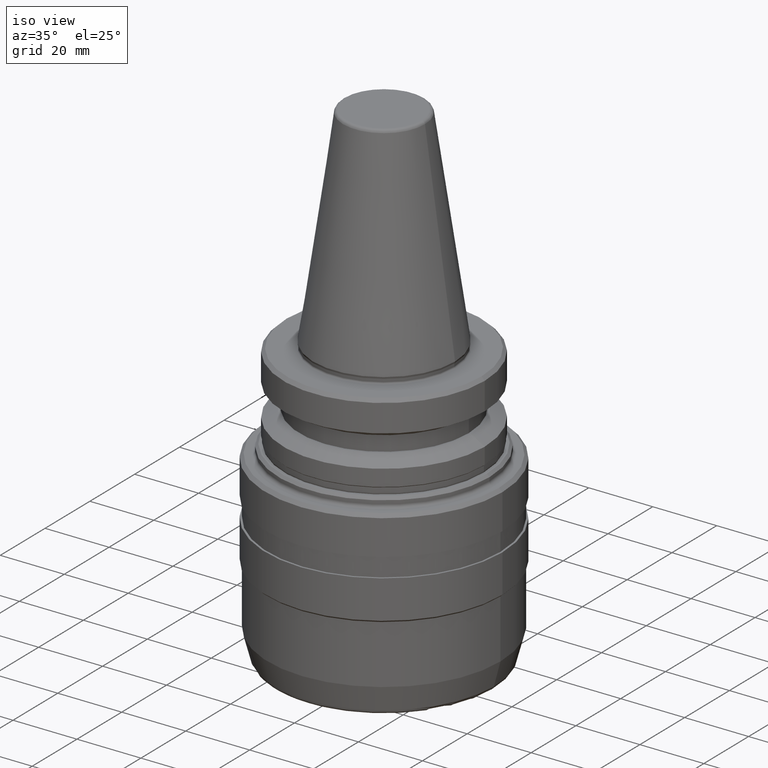
[diagram: clean part render]
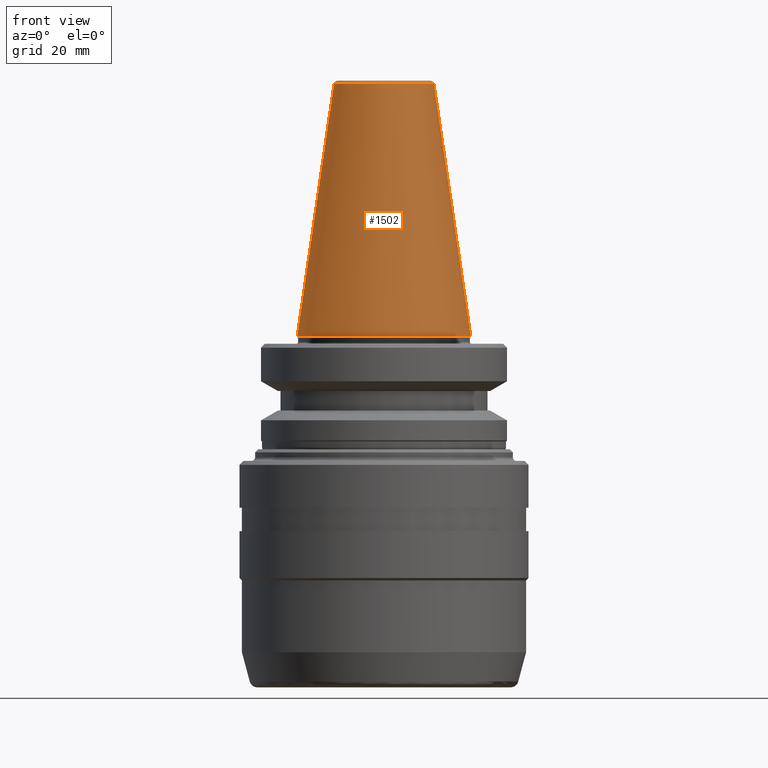
[diagram: tour spotlight — one face highlighted and labeled with its STEP entity id]
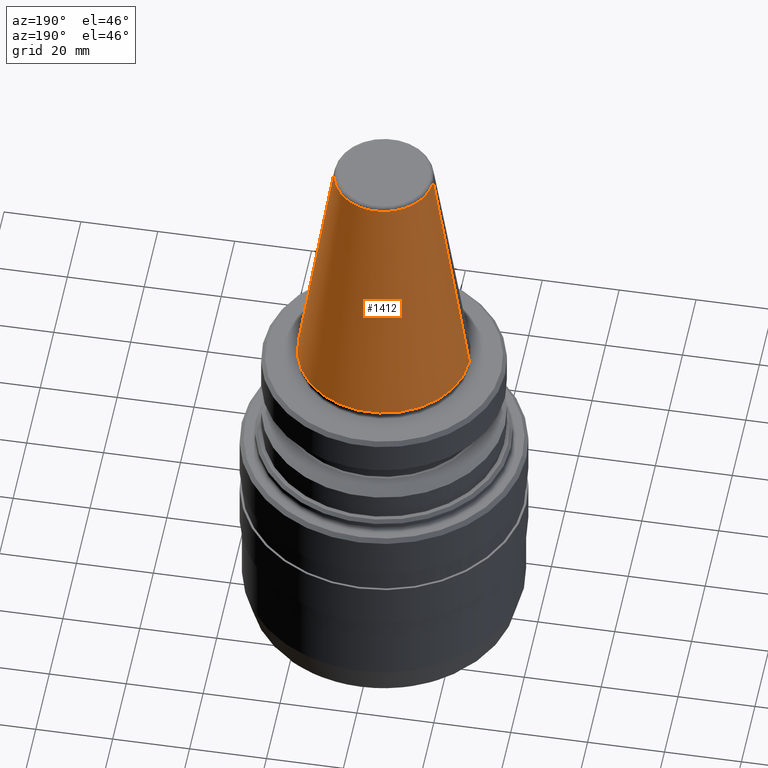
[diagram: tour spotlight — one face highlighted and labeled with its STEP entity id]
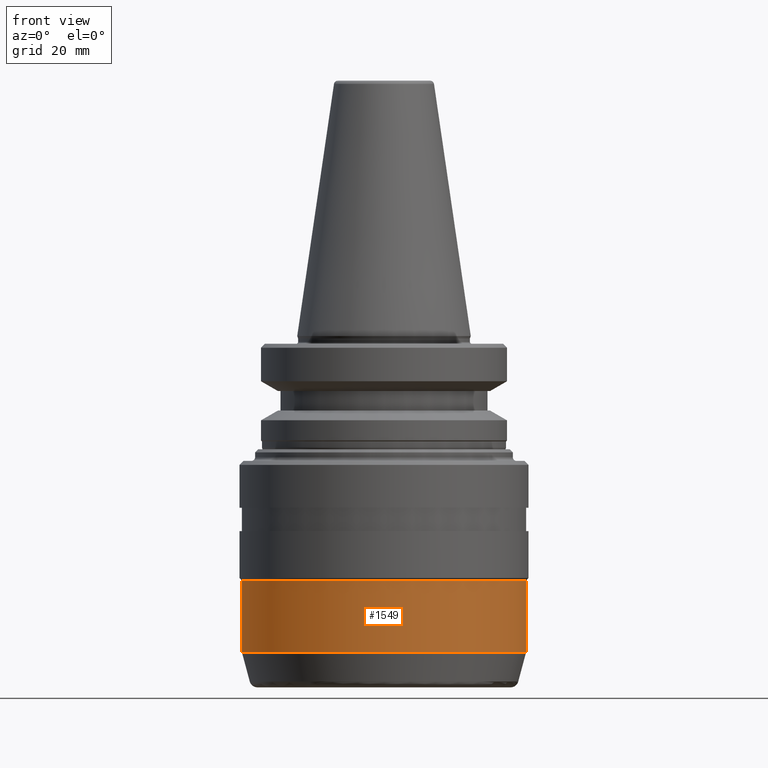
[diagram: tour spotlight — one face highlighted and labeled with its STEP entity id]
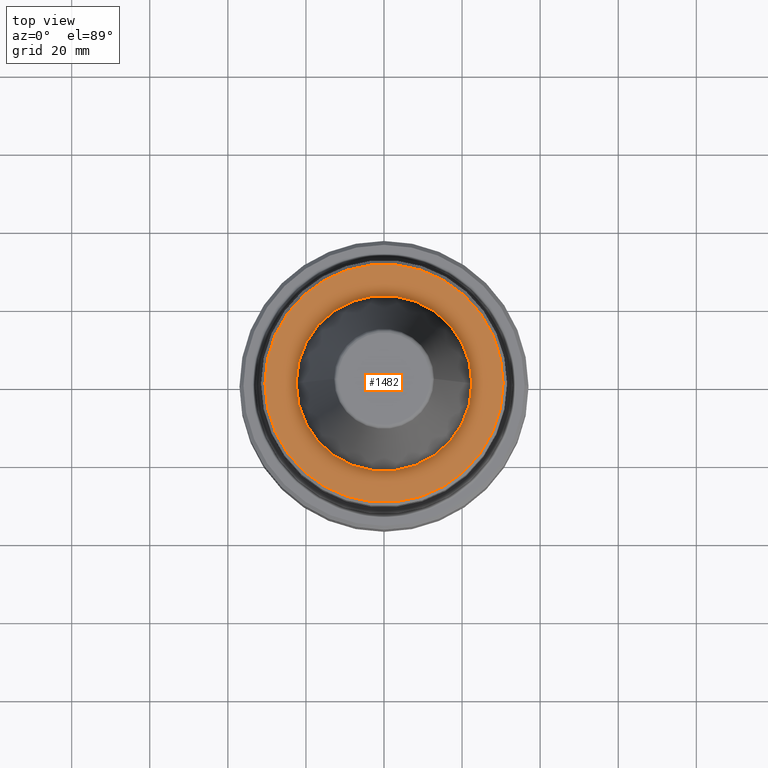
[diagram: tour spotlight — one face highlighted and labeled with its STEP entity id]
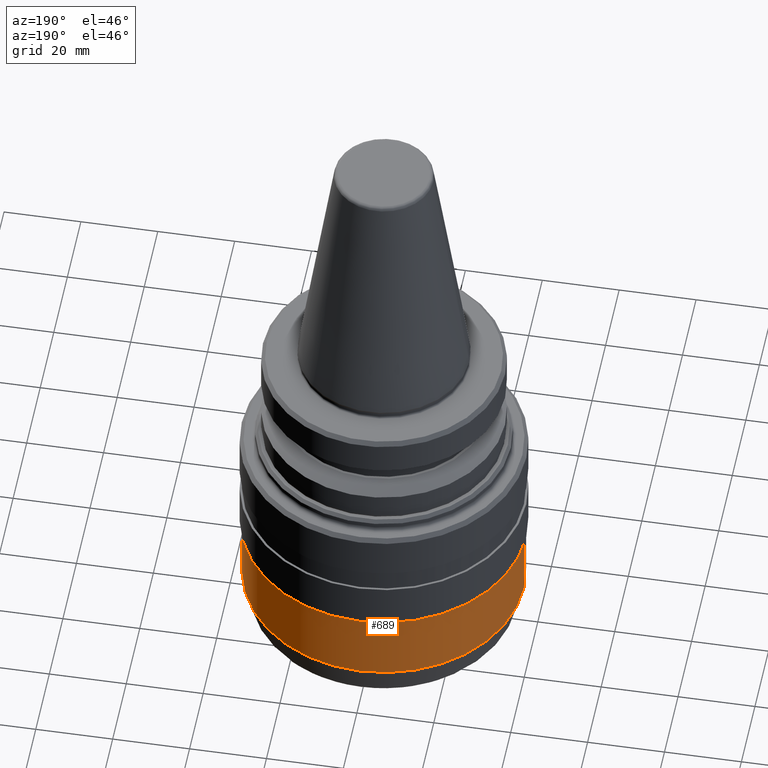
[diagram: tour spotlight — one face highlighted and labeled with its STEP entity id]
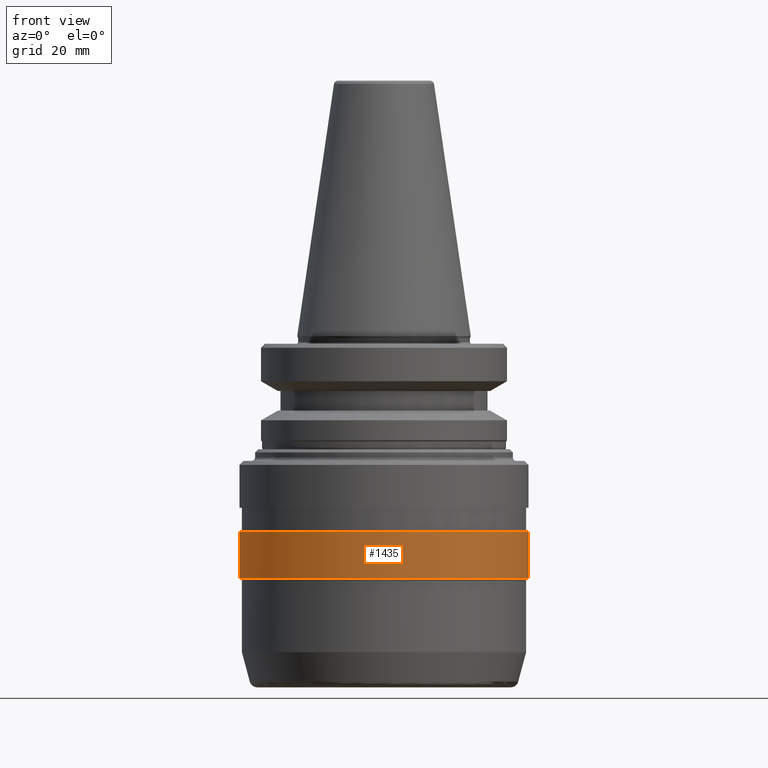
[diagram: tour spotlight — one face highlighted and labeled with its STEP entity id]
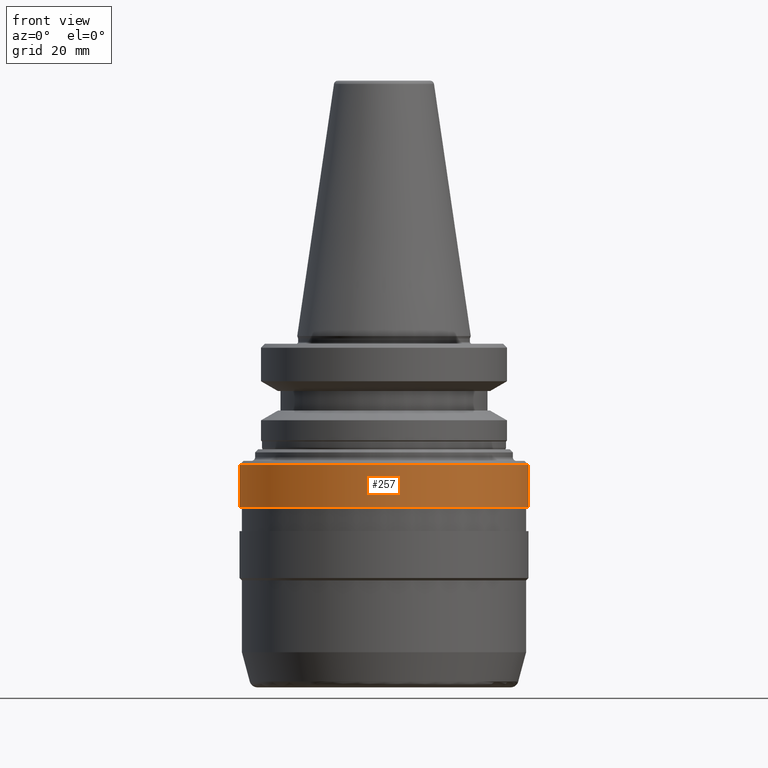
[diagram: tour spotlight — one face highlighted and labeled with its STEP entity id]
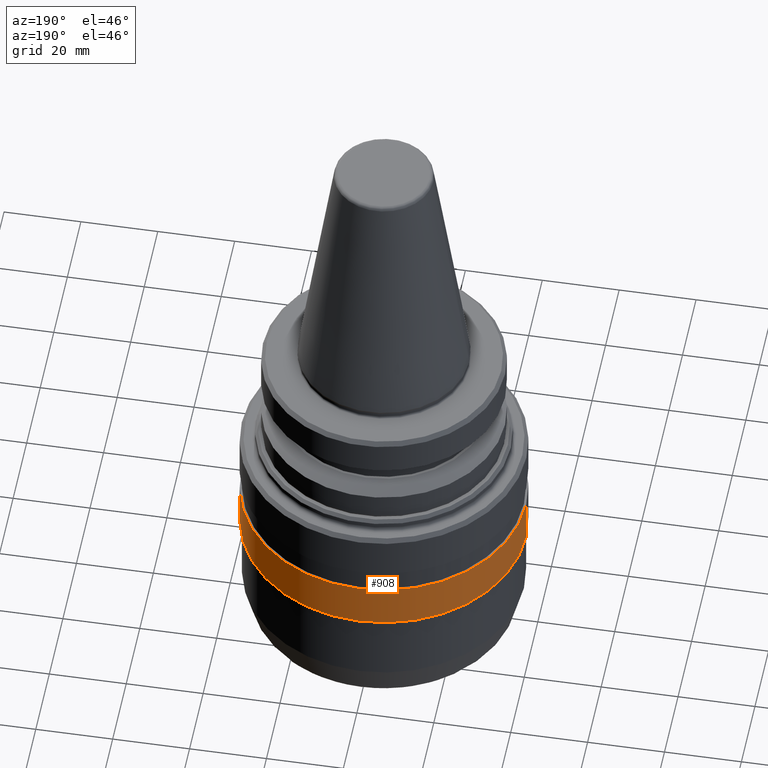
[diagram: tour spotlight — one face highlighted and labeled with its STEP entity id]
A machine part: a face-by-face anatomy tour. The part has 61 B-rep faces; the first image is the clean iso view, then the 8 largest visible faces are spotlighted one at a time (largest first), each with its STEP entity span.

Face 1 — front view, entity #1502. In plain terms, the highlighted conical surface has half-angle 8.297 deg.
Definition (entity closure, byte-faithful):
#33 = DIRECTION ( 'NONE',  ( -0.1443081888881816200, 0.0000000000000000000, -0.9895327920891824300 ) ) ;
#59 = EDGE_CURVE ( 'NONE', #1000, #266, #850, .T. ) ;
#79 = ORIENTED_EDGE ( 'NONE', *, *, #1553, .T. ) ;
#118 = EDGE_CURVE ( 'NONE', #573, #266, #448, .T. ) ;
#159 = DIRECTION ( 'NONE',  ( 0.1443081888881816200, 1.767265616126632900E-017, -0.9895327920891824300 ) ) ;
#215 = CIRCLE ( 'NONE', #478, 12.81220206925754300 ) ;
#266 = VERTEX_POINT ( 'NONE', #1354 ) ;
#267 = EDGE_LOOP ( 'NONE', ( #874, #727, #79, #413 ) ) ;
#343 = EDGE_CURVE ( 'NONE', #1217, #573, #215, .T. ) ;
#390 = VECTOR ( 'NONE', #159, 999.9999999999998900 ) ;
#413 = ORIENTED_EDGE ( 'NONE', *, *, #59, .T. ) ;
#448 = LINE ( 'NONE', #567, #390 ) ;
#454 = FACE_OUTER_BOUND ( 'NONE', #267, .T. ) ;
#473 = DIRECTION ( 'NONE',  ( 1.000000000000000000, 0.0000000000000000000, 0.0000000000000000000 ) ) ;
#478 = AXIS2_PLACEMENT_3D ( 'NONE', #742, #1029, #473 ) ;
#559 = DIRECTION ( 'NONE',  ( -0.0000000000000000000, -0.0000000000000000000, 1.000000000000000000 ) ) ;
#567 = CARTESIAN_POINT ( 'NONE',  ( 22.22500000000016100, 2.721777511105012600E-015, 0.0000000000000000000 ) ) ;
#569 = DIRECTION ( 'NONE',  ( 0.0000000000000000000, 0.0000000000000000000, -1.000000000000000000 ) ) ;
#573 = VERTEX_POINT ( 'NONE', #1156 ) ;
#700 = AXIS2_PLACEMENT_3D ( 'NONE', #1543, #569, #822 ) ;
#721 = CARTESIAN_POINT ( 'NONE',  ( 0.0000000000000000000, 0.0000000000000000000, 0.0000000000000000000 ) ) ;
#727 = ORIENTED_EDGE ( 'NONE', *, *, #343, .F. ) ;
#742 = CARTESIAN_POINT ( 'NONE',  ( 0.0000000000000000000, 0.0000000000000000000, 64.54430818888775400 ) ) ;
#822 = DIRECTION ( 'NONE',  ( -1.000000000000000000, 0.0000000000000000000, 0.0000000000000000000 ) ) ;
#850 = CIRCLE ( 'NONE', #1119, 22.22500000000016100 ) ;
#874 = ORIENTED_EDGE ( 'NONE', *, *, #118, .F. ) ;
#932 = LINE ( 'NONE', #1426, #1571 ) ;
#946 = CARTESIAN_POINT ( 'NONE',  ( -22.22500000000016100, 2.721777511105012600E-015, 0.0000000000000000000 ) ) ;
#1000 = VERTEX_POINT ( 'NONE', #946 ) ;
#1029 = DIRECTION ( 'NONE',  ( -0.0000000000000000000, -0.0000000000000000000, 1.000000000000000000 ) ) ;
#1096 = DIRECTION ( 'NONE',  ( 1.000000000000000000, 0.0000000000000000000, 0.0000000000000000000 ) ) ;
#1119 = AXIS2_PLACEMENT_3D ( 'NONE', #721, #559, #1096 ) ;
#1156 = CARTESIAN_POINT ( 'NONE',  ( 12.81220206925754300, 2.145409868259773500E-015, 64.54430818888775400 ) ) ;
#1217 = VERTEX_POINT ( 'NONE', #1233 ) ;
#1233 = CARTESIAN_POINT ( 'NONE',  ( -12.81220206925754300, 0.0000000000000000000, 64.54430818888775400 ) ) ;
#1288 = CONICAL_SURFACE ( 'NONE', #700, 22.22500000000016100, 0.1448138077623218300 ) ;
#1354 = CARTESIAN_POINT ( 'NONE',  ( 22.22500000000016100, 0.0000000000000000000, 0.0000000000000000000 ) ) ;
#1426 = CARTESIAN_POINT ( 'NONE',  ( -22.22500000000016100, 0.0000000000000000000, 0.0000000000000000000 ) ) ;
#1502 = ADVANCED_FACE ( 'NONE', ( #454 ), #1288, .T. ) ;
#1543 = CARTESIAN_POINT ( 'NONE',  ( 0.0000000000000000000, 0.0000000000000000000, 0.0000000000000000000 ) ) ;
#1553 = EDGE_CURVE ( 'NONE', #1217, #1000, #932, .T. ) ;
#1571 = VECTOR ( 'NONE', #33, 999.9999999999998900 ) ;

Face 2 — auxiliary view, entity #1412. In plain terms, the highlighted conical surface has half-angle 8.297 deg.
Definition (entity closure, byte-faithful):
#33 = DIRECTION ( 'NONE',  ( -0.1443081888881816200, 0.0000000000000000000, -0.9895327920891824300 ) ) ;
#118 = EDGE_CURVE ( 'NONE', #573, #266, #448, .T. ) ;
#145 = DIRECTION ( 'NONE',  ( -0.0000000000000000000, -0.0000000000000000000, 1.000000000000000000 ) ) ;
#159 = DIRECTION ( 'NONE',  ( 0.1443081888881816200, 1.767265616126632900E-017, -0.9895327920891824300 ) ) ;
#214 = DIRECTION ( 'NONE',  ( -0.0000000000000000000, -0.0000000000000000000, 1.000000000000000000 ) ) ;
#266 = VERTEX_POINT ( 'NONE', #1354 ) ;
#344 = ORIENTED_EDGE ( 'NONE', *, *, #910, .F. ) ;
#359 = CIRCLE ( 'NONE', #1542, 22.22500000000016100 ) ;
#390 = VECTOR ( 'NONE', #159, 999.9999999999998900 ) ;
#416 = CARTESIAN_POINT ( 'NONE',  ( 0.0000000000000000000, 0.0000000000000000000, 0.0000000000000000000 ) ) ;
#448 = LINE ( 'NONE', #567, #390 ) ;
#529 = ORIENTED_EDGE ( 'NONE', *, *, #1553, .F. ) ;
#543 = DIRECTION ( 'NONE',  ( 0.0000000000000000000, 0.0000000000000000000, -1.000000000000000000 ) ) ;
#567 = CARTESIAN_POINT ( 'NONE',  ( 22.22500000000016100, 2.721777511105012600E-015, 0.0000000000000000000 ) ) ;
#573 = VERTEX_POINT ( 'NONE', #1156 ) ;
#793 = CONICAL_SURFACE ( 'NONE', #1544, 22.22500000000016100, 0.1448138077623218300 ) ;
#798 = EDGE_CURVE ( 'NONE', #266, #1000, #359, .T. ) ;
#906 = CARTESIAN_POINT ( 'NONE',  ( 0.0000000000000000000, 0.0000000000000000000, 0.0000000000000000000 ) ) ;
#910 = EDGE_CURVE ( 'NONE', #573, #1217, #1643, .T. ) ;
#917 = FACE_OUTER_BOUND ( 'NONE', #1608, .T. ) ;
#925 = ORIENTED_EDGE ( 'NONE', *, *, #118, .T. ) ;
#932 = LINE ( 'NONE', #1426, #1571 ) ;
#935 = CARTESIAN_POINT ( 'NONE',  ( 0.0000000000000000000, 0.0000000000000000000, 64.54430818888775400 ) ) ;
#946 = CARTESIAN_POINT ( 'NONE',  ( -22.22500000000016100, 2.721777511105012600E-015, 0.0000000000000000000 ) ) ;
#1000 = VERTEX_POINT ( 'NONE', #946 ) ;
#1011 = ORIENTED_EDGE ( 'NONE', *, *, #798, .T. ) ;
#1062 = DIRECTION ( 'NONE',  ( 1.000000000000000000, 0.0000000000000000000, 0.0000000000000000000 ) ) ;
#1156 = CARTESIAN_POINT ( 'NONE',  ( 12.81220206925754300, 2.145409868259773500E-015, 64.54430818888775400 ) ) ;
#1177 = DIRECTION ( 'NONE',  ( -1.000000000000000000, 0.0000000000000000000, 0.0000000000000000000 ) ) ;
#1217 = VERTEX_POINT ( 'NONE', #1233 ) ;
#1233 = CARTESIAN_POINT ( 'NONE',  ( -12.81220206925754300, 0.0000000000000000000, 64.54430818888775400 ) ) ;
#1349 = DIRECTION ( 'NONE',  ( 1.000000000000000000, 0.0000000000000000000, 0.0000000000000000000 ) ) ;
#1354 = CARTESIAN_POINT ( 'NONE',  ( 22.22500000000016100, 0.0000000000000000000, 0.0000000000000000000 ) ) ;
#1362 = AXIS2_PLACEMENT_3D ( 'NONE', #935, #145, #1062 ) ;
#1412 = ADVANCED_FACE ( 'NONE', ( #917 ), #793, .T. ) ;
#1426 = CARTESIAN_POINT ( 'NONE',  ( -22.22500000000016100, 0.0000000000000000000, 0.0000000000000000000 ) ) ;
#1542 = AXIS2_PLACEMENT_3D ( 'NONE', #906, #214, #1349 ) ;
#1544 = AXIS2_PLACEMENT_3D ( 'NONE', #416, #543, #1177 ) ;
#1553 = EDGE_CURVE ( 'NONE', #1217, #1000, #932, .T. ) ;
#1571 = VECTOR ( 'NONE', #33, 999.9999999999998900 ) ;
#1608 = EDGE_LOOP ( 'NONE', ( #344, #925, #1011, #529 ) ) ;
#1643 = CIRCLE ( 'NONE', #1362, 12.81220206925754300 ) ;

Face 3 — front view, entity #1549. In plain terms, the highlighted cylindrical surface (partial cylindrical patch) has radius 36.4 mm, axis along (-0, -0, 1).
Definition (entity closure, byte-faithful):
#40 = CIRCLE ( 'NONE', #1208, 36.39999999999798800 ) ;
#55 = EDGE_CURVE ( 'NONE', #1252, #253, #810, .T. ) ;
#105 = EDGE_CURVE ( 'NONE', #806, #253, #40, .T. ) ;
#136 = ORIENTED_EDGE ( 'NONE', *, *, #372, .F. ) ;
#169 = CARTESIAN_POINT ( 'NONE',  ( 36.39999999999798800, 0.0000000000000000000, -62.60000000000375300 ) ) ;
#188 = EDGE_CURVE ( 'NONE', #845, #1252, #1443, .T. ) ;
#225 = ORIENTED_EDGE ( 'NONE', *, *, #188, .T. ) ;
#253 = VERTEX_POINT ( 'NONE', #169 ) ;
#275 = AXIS2_PLACEMENT_3D ( 'NONE', #1106, #1491, #937 ) ;
#284 = FACE_OUTER_BOUND ( 'NONE', #758, .T. ) ;
#348 = ORIENTED_EDGE ( 'NONE', *, *, #105, .F. ) ;
#372 = EDGE_CURVE ( 'NONE', #845, #806, #415, .T. ) ;
#415 = LINE ( 'NONE', #938, #483 ) ;
#444 = DIRECTION ( 'NONE',  ( 1.000000000000000000, 0.0000000000000000000, 0.0000000000000000000 ) ) ;
#472 = CARTESIAN_POINT ( 'NONE',  ( 0.0000000000000000000, 0.0000000000000000000, -62.60000000000375300 ) ) ;
#483 = VECTOR ( 'NONE', #604, 1000.000000000000000 ) ;
#555 = CARTESIAN_POINT ( 'NONE',  ( -36.39999999999798800, 4.457714348896118900E-015, -62.60000000000375300 ) ) ;
#600 = CYLINDRICAL_SURFACE ( 'NONE', #1276, 36.39999999999798800 ) ;
#604 = DIRECTION ( 'NONE',  ( -0.0000000000000000000, -0.0000000000000000000, 1.000000000000000000 ) ) ;
#758 = EDGE_LOOP ( 'NONE', ( #136, #225, #1009, #348 ) ) ;
#762 = DIRECTION ( 'NONE',  ( -0.0000000000000000000, -0.0000000000000000000, 1.000000000000000000 ) ) ;
#789 = VECTOR ( 'NONE', #964, 1000.000000000000000 ) ;
#806 = VERTEX_POINT ( 'NONE', #555 ) ;
#810 = LINE ( 'NONE', #1505, #789 ) ;
#845 = VERTEX_POINT ( 'NONE', #1013 ) ;
#937 = DIRECTION ( 'NONE',  ( 1.000000000000000000, 0.0000000000000000000, 0.0000000000000000000 ) ) ;
#938 = CARTESIAN_POINT ( 'NONE',  ( -36.39999999999798800, 4.457714348896118900E-015, 83.38305275654680300 ) ) ;
#964 = DIRECTION ( 'NONE',  ( -0.0000000000000000000, -0.0000000000000000000, 1.000000000000000000 ) ) ;
#1009 = ORIENTED_EDGE ( 'NONE', *, *, #55, .T. ) ;
#1013 = CARTESIAN_POINT ( 'NONE',  ( -36.39999999999798800, 4.457714348896118900E-015, -81.00000000000928000 ) ) ;
#1106 = CARTESIAN_POINT ( 'NONE',  ( 0.0000000000000000000, 0.0000000000000000000, -81.00000000000928000 ) ) ;
#1205 = DIRECTION ( 'NONE',  ( -0.0000000000000000000, -0.0000000000000000000, 1.000000000000000000 ) ) ;
#1208 = AXIS2_PLACEMENT_3D ( 'NONE', #472, #762, #1433 ) ;
#1252 = VERTEX_POINT ( 'NONE', #1462 ) ;
#1276 = AXIS2_PLACEMENT_3D ( 'NONE', #1312, #1205, #444 ) ;
#1312 = CARTESIAN_POINT ( 'NONE',  ( 0.0000000000000000000, 0.0000000000000000000, 83.38305275654680300 ) ) ;
#1433 = DIRECTION ( 'NONE',  ( 1.000000000000000000, 0.0000000000000000000, 0.0000000000000000000 ) ) ;
#1443 = CIRCLE ( 'NONE', #275, 36.39999999999798800 ) ;
#1462 = CARTESIAN_POINT ( 'NONE',  ( 36.39999999999798800, 0.0000000000000000000, -81.00000000000928000 ) ) ;
#1491 = DIRECTION ( 'NONE',  ( -0.0000000000000000000, -0.0000000000000000000, 1.000000000000000000 ) ) ;
#1505 = CARTESIAN_POINT ( 'NONE',  ( 36.39999999999798800, 0.0000000000000000000, 83.38305275654680300 ) ) ;
#1549 = ADVANCED_FACE ( 'NONE', ( #284 ), #600, .T. ) ;

Face 4 — top view, entity #1482. In plain terms, the highlighted planar face has unit normal (0, 0, -1).
Definition (entity closure, byte-faithful):
#48 = FACE_BOUND ( 'NONE', #695, .T. ) ;
#135 = DIRECTION ( 'NONE',  ( 1.000000000000000000, 0.0000000000000000000, 0.0000000000000000000 ) ) ;
#156 = DIRECTION ( 'NONE',  ( -1.000000000000000000, 0.0000000000000000000, -0.0000000000000000000 ) ) ;
#202 = AXIS2_PLACEMENT_3D ( 'NONE', #909, #681, #1392 ) ;
#264 = DIRECTION ( 'NONE',  ( -0.0000000000000000000, -0.0000000000000000000, 1.000000000000000000 ) ) ;
#274 = EDGE_CURVE ( 'NONE', #1146, #795, #947, .T. ) ;
#291 = CARTESIAN_POINT ( 'NONE',  ( -30.50000000000024900, 0.0000000000000000000, -2.000000000001112000 ) ) ;
#391 = CARTESIAN_POINT ( 'NONE',  ( 0.0000000000000000000, 0.0000000000000000000, -2.000000000001112000 ) ) ;
#410 = CARTESIAN_POINT ( 'NONE',  ( 0.0000000000000000000, 0.0000000000000000000, -2.000000000001112000 ) ) ;
#414 = CARTESIAN_POINT ( 'NONE',  ( -22.50000000000024200, 2.755455298081574400E-015, -2.000000000001098200 ) ) ;
#425 = CARTESIAN_POINT ( 'NONE',  ( 22.50000000000024200, 0.0000000000000000000, -2.000000000001098200 ) ) ;
#431 = EDGE_CURVE ( 'NONE', #795, #1146, #955, .T. ) ;
#510 = AXIS2_PLACEMENT_3D ( 'NONE', #391, #1240, #135 ) ;
#562 = DIRECTION ( 'NONE',  ( 1.000000000000000000, 0.0000000000000000000, 0.0000000000000000000 ) ) ;
#568 = EDGE_CURVE ( 'NONE', #782, #936, #739, .T. ) ;
#595 = ORIENTED_EDGE ( 'NONE', *, *, #651, .F. ) ;
#622 = AXIS2_PLACEMENT_3D ( 'NONE', #1298, #945, #156 ) ;
#627 = ORIENTED_EDGE ( 'NONE', *, *, #431, .T. ) ;
#651 = EDGE_CURVE ( 'NONE', #936, #782, #1373, .T. ) ;
#677 = ORIENTED_EDGE ( 'NONE', *, *, #274, .T. ) ;
#681 = DIRECTION ( 'NONE',  ( -0.0000000000000000000, -0.0000000000000000000, 1.000000000000000000 ) ) ;
#695 = EDGE_LOOP ( 'NONE', ( #595, #1242 ) ) ;
#739 = CIRCLE ( 'NONE', #777, 22.50000000000024200 ) ;
#777 = AXIS2_PLACEMENT_3D ( 'NONE', #1558, #264, #562 ) ;
#782 = VERTEX_POINT ( 'NONE', #414 ) ;
#795 = VERTEX_POINT ( 'NONE', #291 ) ;
#811 = PLANE ( 'NONE',  #622 ) ;
#909 = CARTESIAN_POINT ( 'NONE',  ( 0.0000000000000000000, 0.0000000000000000000, -2.000000000001112000 ) ) ;
#936 = VERTEX_POINT ( 'NONE', #425 ) ;
#945 = DIRECTION ( 'NONE',  ( 0.0000000000000000000, 0.0000000000000000000, -1.000000000000000000 ) ) ;
#947 = CIRCLE ( 'NONE', #202, 30.50000000000024900 ) ;
#955 = CIRCLE ( 'NONE', #510, 30.50000000000024900 ) ;
#1146 = VERTEX_POINT ( 'NONE', #1333 ) ;
#1240 = DIRECTION ( 'NONE',  ( -0.0000000000000000000, -0.0000000000000000000, 1.000000000000000000 ) ) ;
#1242 = ORIENTED_EDGE ( 'NONE', *, *, #568, .F. ) ;
#1298 = CARTESIAN_POINT ( 'NONE',  ( 0.0000000000000000000, 30.50000000000024900, -2.000000000001112000 ) ) ;
#1307 = EDGE_LOOP ( 'NONE', ( #627, #677 ) ) ;
#1333 = CARTESIAN_POINT ( 'NONE',  ( 30.50000000000024900, 3.796405077356825100E-015, -2.000000000001112000 ) ) ;
#1339 = DIRECTION ( 'NONE',  ( 1.000000000000000000, 0.0000000000000000000, 0.0000000000000000000 ) ) ;
#1361 = FACE_OUTER_BOUND ( 'NONE', #1307, .T. ) ;
#1373 = CIRCLE ( 'NONE', #1586, 22.50000000000024200 ) ;
#1392 = DIRECTION ( 'NONE',  ( 1.000000000000000000, 0.0000000000000000000, 0.0000000000000000000 ) ) ;
#1406 = DIRECTION ( 'NONE',  ( -0.0000000000000000000, -0.0000000000000000000, 1.000000000000000000 ) ) ;
#1482 = ADVANCED_FACE ( 'NONE', ( #48, #1361 ), #811, .F. ) ;
#1558 = CARTESIAN_POINT ( 'NONE',  ( 0.0000000000000000000, 0.0000000000000000000, -2.000000000001112000 ) ) ;
#1586 = AXIS2_PLACEMENT_3D ( 'NONE', #410, #1406, #1339 ) ;

Face 5 — auxiliary view, entity #689. In plain terms, the highlighted cylindrical surface (partial cylindrical patch) has radius 36.4 mm, axis along (-0, -0, 1).
Definition (entity closure, byte-faithful):
#55 = EDGE_CURVE ( 'NONE', #1252, #253, #810, .T. ) ;
#68 = CARTESIAN_POINT ( 'NONE',  ( 0.0000000000000000000, 0.0000000000000000000, -81.00000000000928000 ) ) ;
#126 = ORIENTED_EDGE ( 'NONE', *, *, #372, .T. ) ;
#169 = CARTESIAN_POINT ( 'NONE',  ( 36.39999999999798800, 0.0000000000000000000, -62.60000000000375300 ) ) ;
#207 = CARTESIAN_POINT ( 'NONE',  ( 0.0000000000000000000, 0.0000000000000000000, -62.60000000000375300 ) ) ;
#253 = VERTEX_POINT ( 'NONE', #169 ) ;
#261 = CIRCLE ( 'NONE', #540, 36.39999999999798800 ) ;
#337 = DIRECTION ( 'NONE',  ( 1.000000000000000000, 0.0000000000000000000, 0.0000000000000000000 ) ) ;
#372 = EDGE_CURVE ( 'NONE', #845, #806, #415, .T. ) ;
#415 = LINE ( 'NONE', #938, #483 ) ;
#483 = VECTOR ( 'NONE', #604, 1000.000000000000000 ) ;
#540 = AXIS2_PLACEMENT_3D ( 'NONE', #68, #1137, #1625 ) ;
#555 = CARTESIAN_POINT ( 'NONE',  ( -36.39999999999798800, 4.457714348896118900E-015, -62.60000000000375300 ) ) ;
#604 = DIRECTION ( 'NONE',  ( -0.0000000000000000000, -0.0000000000000000000, 1.000000000000000000 ) ) ;
#689 = ADVANCED_FACE ( 'NONE', ( #1348 ), #931, .T. ) ;
#779 = EDGE_CURVE ( 'NONE', #1252, #845, #261, .T. ) ;
#787 = ORIENTED_EDGE ( 'NONE', *, *, #1138, .F. ) ;
#789 = VECTOR ( 'NONE', #964, 1000.000000000000000 ) ;
#806 = VERTEX_POINT ( 'NONE', #555 ) ;
#810 = LINE ( 'NONE', #1505, #789 ) ;
#845 = VERTEX_POINT ( 'NONE', #1013 ) ;
#931 = CYLINDRICAL_SURFACE ( 'NONE', #1622, 36.39999999999798800 ) ;
#938 = CARTESIAN_POINT ( 'NONE',  ( -36.39999999999798800, 4.457714348896118900E-015, 83.38305275654680300 ) ) ;
#964 = DIRECTION ( 'NONE',  ( -0.0000000000000000000, -0.0000000000000000000, 1.000000000000000000 ) ) ;
#1013 = CARTESIAN_POINT ( 'NONE',  ( -36.39999999999798800, 4.457714348896118900E-015, -81.00000000000928000 ) ) ;
#1045 = ORIENTED_EDGE ( 'NONE', *, *, #779, .T. ) ;
#1055 = ORIENTED_EDGE ( 'NONE', *, *, #55, .F. ) ;
#1061 = CIRCLE ( 'NONE', #1182, 36.39999999999798800 ) ;
#1097 = DIRECTION ( 'NONE',  ( 1.000000000000000000, 0.0000000000000000000, 0.0000000000000000000 ) ) ;
#1107 = DIRECTION ( 'NONE',  ( -0.0000000000000000000, -0.0000000000000000000, 1.000000000000000000 ) ) ;
#1137 = DIRECTION ( 'NONE',  ( -0.0000000000000000000, -0.0000000000000000000, 1.000000000000000000 ) ) ;
#1138 = EDGE_CURVE ( 'NONE', #253, #806, #1061, .T. ) ;
#1182 = AXIS2_PLACEMENT_3D ( 'NONE', #207, #1107, #337 ) ;
#1252 = VERTEX_POINT ( 'NONE', #1462 ) ;
#1315 = DIRECTION ( 'NONE',  ( -0.0000000000000000000, -0.0000000000000000000, 1.000000000000000000 ) ) ;
#1348 = FACE_OUTER_BOUND ( 'NONE', #1515, .T. ) ;
#1462 = CARTESIAN_POINT ( 'NONE',  ( 36.39999999999798800, 0.0000000000000000000, -81.00000000000928000 ) ) ;
#1463 = CARTESIAN_POINT ( 'NONE',  ( 0.0000000000000000000, 0.0000000000000000000, 83.38305275654680300 ) ) ;
#1505 = CARTESIAN_POINT ( 'NONE',  ( 36.39999999999798800, 0.0000000000000000000, 83.38305275654680300 ) ) ;
#1515 = EDGE_LOOP ( 'NONE', ( #1045, #126, #787, #1055 ) ) ;
#1622 = AXIS2_PLACEMENT_3D ( 'NONE', #1463, #1315, #1097 ) ;
#1625 = DIRECTION ( 'NONE',  ( 1.000000000000000000, 0.0000000000000000000, 0.0000000000000000000 ) ) ;

Face 6 — front view, entity #1435. In plain terms, the highlighted cylindrical surface (partial cylindrical patch) has radius 37 mm, axis along (-0, -0, 1).
Definition (entity closure, byte-faithful):
#11 = ORIENTED_EDGE ( 'NONE', *, *, #939, .T. ) ;
#51 = VERTEX_POINT ( 'NONE', #76 ) ;
#76 = CARTESIAN_POINT ( 'NONE',  ( 36.99999999999992200, 0.0000000000000000000, -62.00000000000203900 ) ) ;
#110 = VERTEX_POINT ( 'NONE', #737 ) ;
#129 = VERTEX_POINT ( 'NONE', #241 ) ;
#144 = DIRECTION ( 'NONE',  ( 1.000000000000000000, 0.0000000000000000000, 0.0000000000000000000 ) ) ;
#154 = ORIENTED_EDGE ( 'NONE', *, *, #457, .F. ) ;
#234 = FACE_OUTER_BOUND ( 'NONE', #1471, .T. ) ;
#241 = CARTESIAN_POINT ( 'NONE',  ( 36.99999999999992200, 0.0000000000000000000, -50.00000000000114400 ) ) ;
#289 = CARTESIAN_POINT ( 'NONE',  ( 36.99999999999992200, 0.0000000000000000000, 83.38305275654680300 ) ) ;
#313 = VECTOR ( 'NONE', #1536, 1000.000000000000000 ) ;
#324 = VERTEX_POINT ( 'NONE', #808 ) ;
#439 = AXIS2_PLACEMENT_3D ( 'NONE', #1293, #556, #144 ) ;
#457 = EDGE_CURVE ( 'NONE', #324, #110, #915, .T. ) ;
#495 = VECTOR ( 'NONE', #1195, 1000.000000000000000 ) ;
#501 = CARTESIAN_POINT ( 'NONE',  ( 0.0000000000000000000, 0.0000000000000000000, -50.00000000000114400 ) ) ;
#505 = CARTESIAN_POINT ( 'NONE',  ( 0.0000000000000000000, 0.0000000000000000000, -62.00000000000203900 ) ) ;
#556 = DIRECTION ( 'NONE',  ( -0.0000000000000000000, -0.0000000000000000000, 1.000000000000000000 ) ) ;
#635 = DIRECTION ( 'NONE',  ( 1.000000000000000000, 0.0000000000000000000, 0.0000000000000000000 ) ) ;
#640 = DIRECTION ( 'NONE',  ( 1.000000000000000000, 0.0000000000000000000, 0.0000000000000000000 ) ) ;
#657 = AXIS2_PLACEMENT_3D ( 'NONE', #501, #1360, #635 ) ;
#671 = LINE ( 'NONE', #289, #313 ) ;
#694 = CIRCLE ( 'NONE', #657, 36.99999999999992200 ) ;
#737 = CARTESIAN_POINT ( 'NONE',  ( -36.99999999999992200, 4.531193156845197300E-015, -50.00000000000114400 ) ) ;
#808 = CARTESIAN_POINT ( 'NONE',  ( -36.99999999999992200, 4.531193156845196500E-015, -62.00000000000203900 ) ) ;
#818 = AXIS2_PLACEMENT_3D ( 'NONE', #505, #1364, #640 ) ;
#915 = LINE ( 'NONE', #1069, #495 ) ;
#939 = EDGE_CURVE ( 'NONE', #51, #129, #671, .T. ) ;
#1069 = CARTESIAN_POINT ( 'NONE',  ( -36.99999999999992200, 4.531193156845197300E-015, 83.38305275654680300 ) ) ;
#1195 = DIRECTION ( 'NONE',  ( -0.0000000000000000000, -0.0000000000000000000, 1.000000000000000000 ) ) ;
#1271 = EDGE_CURVE ( 'NONE', #110, #129, #694, .T. ) ;
#1293 = CARTESIAN_POINT ( 'NONE',  ( 0.0000000000000000000, 0.0000000000000000000, 83.38305275654680300 ) ) ;
#1306 = EDGE_CURVE ( 'NONE', #324, #51, #1341, .T. ) ;
#1341 = CIRCLE ( 'NONE', #818, 36.99999999999992200 ) ;
#1360 = DIRECTION ( 'NONE',  ( -0.0000000000000000000, -0.0000000000000000000, 1.000000000000000000 ) ) ;
#1364 = DIRECTION ( 'NONE',  ( -0.0000000000000000000, -0.0000000000000000000, 1.000000000000000000 ) ) ;
#1396 = CYLINDRICAL_SURFACE ( 'NONE', #439, 36.99999999999992200 ) ;
#1435 = ADVANCED_FACE ( 'NONE', ( #234 ), #1396, .T. ) ;
#1454 = ORIENTED_EDGE ( 'NONE', *, *, #1306, .T. ) ;
#1471 = EDGE_LOOP ( 'NONE', ( #154, #1454, #11, #1575 ) ) ;
#1536 = DIRECTION ( 'NONE',  ( -0.0000000000000000000, -0.0000000000000000000, 1.000000000000000000 ) ) ;
#1575 = ORIENTED_EDGE ( 'NONE', *, *, #1271, .F. ) ;

Face 7 — front view, entity #257. In plain terms, the highlighted cylindrical surface (partial cylindrical patch) has radius 37 mm, axis along (-0, -0, 1).
Definition (entity closure, byte-faithful):
#8 = VERTEX_POINT ( 'NONE', #80 ) ;
#20 = EDGE_CURVE ( 'NONE', #99, #301, #1268, .T. ) ;
#26 = CARTESIAN_POINT ( 'NONE',  ( -36.99999999999992900, 4.531193156845198100E-015, -33.00000000000126500 ) ) ;
#80 = CARTESIAN_POINT ( 'NONE',  ( 36.99999999999992200, 0.0000000000000000000, -44.00000000000091700 ) ) ;
#85 = EDGE_CURVE ( 'NONE', #346, #99, #750, .T. ) ;
#99 = VERTEX_POINT ( 'NONE', #26 ) ;
#257 = ADVANCED_FACE ( 'NONE', ( #315 ), #1521, .T. ) ;
#301 = VERTEX_POINT ( 'NONE', #609 ) ;
#315 = FACE_OUTER_BOUND ( 'NONE', #918, .T. ) ;
#346 = VERTEX_POINT ( 'NONE', #641 ) ;
#492 = VECTOR ( 'NONE', #785, 1000.000000000000000 ) ;
#530 = ORIENTED_EDGE ( 'NONE', *, *, #670, .T. ) ;
#587 = CARTESIAN_POINT ( 'NONE',  ( 0.0000000000000000000, 0.0000000000000000000, -33.00000000000126500 ) ) ;
#609 = CARTESIAN_POINT ( 'NONE',  ( 36.99999999999992900, 0.0000000000000000000, -33.00000000000126500 ) ) ;
#641 = CARTESIAN_POINT ( 'NONE',  ( -36.99999999999992200, 4.531193156845197300E-015, -44.00000000000091700 ) ) ;
#670 = EDGE_CURVE ( 'NONE', #346, #8, #1637, .T. ) ;
#733 = AXIS2_PLACEMENT_3D ( 'NONE', #746, #1171, #1479 ) ;
#746 = CARTESIAN_POINT ( 'NONE',  ( 0.0000000000000000000, 0.0000000000000000000, 83.38305275654680300 ) ) ;
#750 = LINE ( 'NONE', #926, #492 ) ;
#785 = DIRECTION ( 'NONE',  ( -0.0000000000000000000, -0.0000000000000000000, 1.000000000000000000 ) ) ;
#801 = VECTOR ( 'NONE', #1434, 1000.000000000000000 ) ;
#843 = LINE ( 'NONE', #1092, #801 ) ;
#880 = AXIS2_PLACEMENT_3D ( 'NONE', #587, #1167, #1080 ) ;
#918 = EDGE_LOOP ( 'NONE', ( #1537, #530, #1467, #1470 ) ) ;
#926 = CARTESIAN_POINT ( 'NONE',  ( -36.99999999999992200, 4.531193156845197300E-015, 83.38305275654680300 ) ) ;
#1074 = EDGE_CURVE ( 'NONE', #8, #301, #843, .T. ) ;
#1080 = DIRECTION ( 'NONE',  ( 1.000000000000000000, 0.0000000000000000000, 0.0000000000000000000 ) ) ;
#1092 = CARTESIAN_POINT ( 'NONE',  ( 36.99999999999992200, 0.0000000000000000000, 83.38305275654680300 ) ) ;
#1105 = DIRECTION ( 'NONE',  ( 1.000000000000000000, 0.0000000000000000000, 0.0000000000000000000 ) ) ;
#1109 = CARTESIAN_POINT ( 'NONE',  ( 0.0000000000000000000, 0.0000000000000000000, -44.00000000000091700 ) ) ;
#1167 = DIRECTION ( 'NONE',  ( -0.0000000000000000000, -0.0000000000000000000, 1.000000000000000000 ) ) ;
#1171 = DIRECTION ( 'NONE',  ( -0.0000000000000000000, -0.0000000000000000000, 1.000000000000000000 ) ) ;
#1268 = CIRCLE ( 'NONE', #880, 36.99999999999992900 ) ;
#1355 = AXIS2_PLACEMENT_3D ( 'NONE', #1109, #1585, #1105 ) ;
#1434 = DIRECTION ( 'NONE',  ( -0.0000000000000000000, -0.0000000000000000000, 1.000000000000000000 ) ) ;
#1467 = ORIENTED_EDGE ( 'NONE', *, *, #1074, .T. ) ;
#1470 = ORIENTED_EDGE ( 'NONE', *, *, #20, .F. ) ;
#1479 = DIRECTION ( 'NONE',  ( 1.000000000000000000, 0.0000000000000000000, 0.0000000000000000000 ) ) ;
#1521 = CYLINDRICAL_SURFACE ( 'NONE', #733, 36.99999999999992200 ) ;
#1537 = ORIENTED_EDGE ( 'NONE', *, *, #85, .F. ) ;
#1585 = DIRECTION ( 'NONE',  ( -0.0000000000000000000, -0.0000000000000000000, 1.000000000000000000 ) ) ;
#1637 = CIRCLE ( 'NONE', #1355, 36.99999999999992200 ) ;

Face 8 — auxiliary view, entity #908. In plain terms, the highlighted cylindrical surface (partial cylindrical patch) has radius 37 mm, axis along (-0, -0, 1).
Definition (entity closure, byte-faithful):
#1 = EDGE_CURVE ( 'NONE', #129, #110, #1285, .T. ) ;
#4 = EDGE_CURVE ( 'NONE', #51, #324, #1179, .T. ) ;
#51 = VERTEX_POINT ( 'NONE', #76 ) ;
#76 = CARTESIAN_POINT ( 'NONE',  ( 36.99999999999992200, 0.0000000000000000000, -62.00000000000203900 ) ) ;
#110 = VERTEX_POINT ( 'NONE', #737 ) ;
#129 = VERTEX_POINT ( 'NONE', #241 ) ;
#231 = ORIENTED_EDGE ( 'NONE', *, *, #4, .T. ) ;
#241 = CARTESIAN_POINT ( 'NONE',  ( 36.99999999999992200, 0.0000000000000000000, -50.00000000000114400 ) ) ;
#289 = CARTESIAN_POINT ( 'NONE',  ( 36.99999999999992200, 0.0000000000000000000, 83.38305275654680300 ) ) ;
#313 = VECTOR ( 'NONE', #1536, 1000.000000000000000 ) ;
#324 = VERTEX_POINT ( 'NONE', #808 ) ;
#400 = FACE_OUTER_BOUND ( 'NONE', #735, .T. ) ;
#457 = EDGE_CURVE ( 'NONE', #324, #110, #915, .T. ) ;
#495 = VECTOR ( 'NONE', #1195, 1000.000000000000000 ) ;
#570 = DIRECTION ( 'NONE',  ( -0.0000000000000000000, -0.0000000000000000000, 1.000000000000000000 ) ) ;
#608 = DIRECTION ( 'NONE',  ( -0.0000000000000000000, -0.0000000000000000000, 1.000000000000000000 ) ) ;
#667 = DIRECTION ( 'NONE',  ( -0.0000000000000000000, -0.0000000000000000000, 1.000000000000000000 ) ) ;
#671 = LINE ( 'NONE', #289, #313 ) ;
#735 = EDGE_LOOP ( 'NONE', ( #231, #952, #848, #1068 ) ) ;
#737 = CARTESIAN_POINT ( 'NONE',  ( -36.99999999999992200, 4.531193156845197300E-015, -50.00000000000114400 ) ) ;
#808 = CARTESIAN_POINT ( 'NONE',  ( -36.99999999999992200, 4.531193156845196500E-015, -62.00000000000203900 ) ) ;
#848 = ORIENTED_EDGE ( 'NONE', *, *, #1, .F. ) ;
#908 = ADVANCED_FACE ( 'NONE', ( #400 ), #1313, .T. ) ;
#915 = LINE ( 'NONE', #1069, #495 ) ;
#939 = EDGE_CURVE ( 'NONE', #51, #129, #671, .T. ) ;
#950 = DIRECTION ( 'NONE',  ( 1.000000000000000000, 0.0000000000000000000, 0.0000000000000000000 ) ) ;
#952 = ORIENTED_EDGE ( 'NONE', *, *, #457, .T. ) ;
#962 = AXIS2_PLACEMENT_3D ( 'NONE', #1623, #608, #1369 ) ;
#1040 = AXIS2_PLACEMENT_3D ( 'NONE', #1618, #667, #950 ) ;
#1068 = ORIENTED_EDGE ( 'NONE', *, *, #939, .F. ) ;
#1069 = CARTESIAN_POINT ( 'NONE',  ( -36.99999999999992200, 4.531193156845197300E-015, 83.38305275654680300 ) ) ;
#1089 = DIRECTION ( 'NONE',  ( 1.000000000000000000, 0.0000000000000000000, 0.0000000000000000000 ) ) ;
#1178 = CARTESIAN_POINT ( 'NONE',  ( 0.0000000000000000000, 0.0000000000000000000, 83.38305275654680300 ) ) ;
#1179 = CIRCLE ( 'NONE', #1040, 36.99999999999992200 ) ;
#1195 = DIRECTION ( 'NONE',  ( -0.0000000000000000000, -0.0000000000000000000, 1.000000000000000000 ) ) ;
#1285 = CIRCLE ( 'NONE', #962, 36.99999999999992200 ) ;
#1313 = CYLINDRICAL_SURFACE ( 'NONE', #1609, 36.99999999999992200 ) ;
#1369 = DIRECTION ( 'NONE',  ( 1.000000000000000000, 0.0000000000000000000, 0.0000000000000000000 ) ) ;
#1536 = DIRECTION ( 'NONE',  ( -0.0000000000000000000, -0.0000000000000000000, 1.000000000000000000 ) ) ;
#1609 = AXIS2_PLACEMENT_3D ( 'NONE', #1178, #570, #1089 ) ;
#1618 = CARTESIAN_POINT ( 'NONE',  ( 0.0000000000000000000, 0.0000000000000000000, -62.00000000000203900 ) ) ;
#1623 = CARTESIAN_POINT ( 'NONE',  ( 0.0000000000000000000, 0.0000000000000000000, -50.00000000000114400 ) ) ;